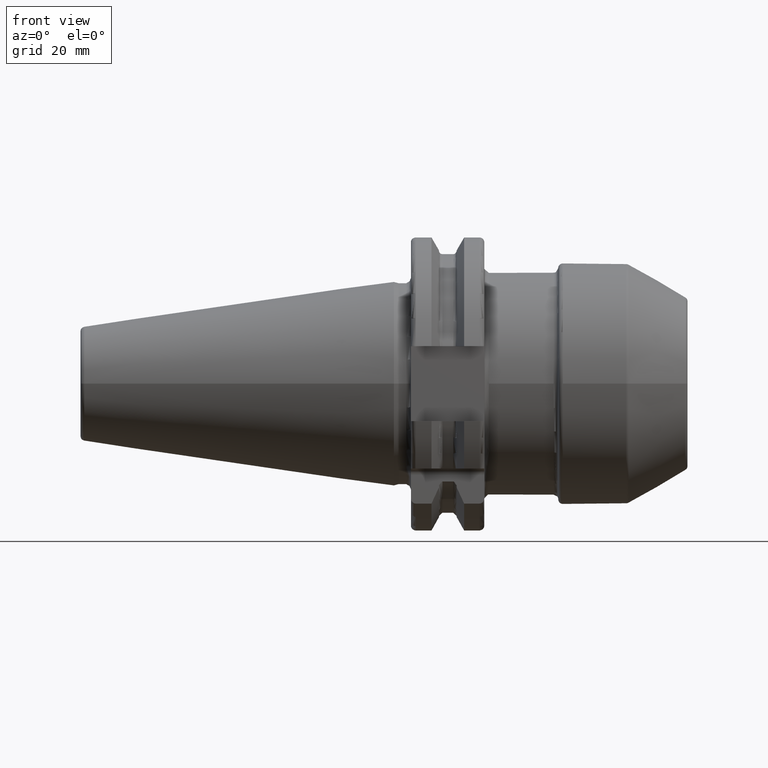
[diagram: clean part render]
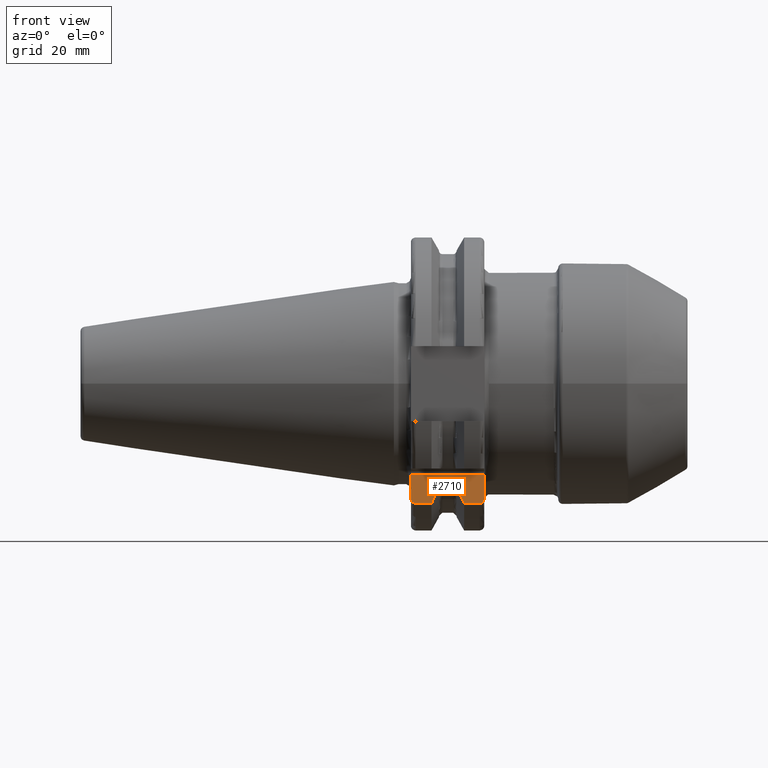
[diagram: same view with one face highlighted and labeled with its STEP entity id]
A machine part, front view. The second image highlights one B-rep face of the part: STEP entity #2710.
In plain terms, the highlighted planar face has unit normal (0, 1, 0).
Its self-contained STEP definition (entity closure, byte-faithful):
#434=DIRECTION('',(0.E0,0.E0,1.E0));
#435=VECTOR('',#434,4.990259339464E0);
#436=CARTESIAN_POINT('',(1.905E1,-1.835E1,-2.469025933946E1));
#437=LINE('',#436,#435);
#516=DIRECTION('',(0.E0,0.E0,1.E0));
#517=VECTOR('',#516,2.754068371193E-1);
#518=CARTESIAN_POINT('',(9.2625E0,-1.835E1,-2.240773613162E1));
#519=LINE('',#518,#517);
#622=DIRECTION('',(0.E0,0.E0,1.E0));
#623=VECTOR('',#622,2.754068371193E-1);
#624=CARTESIAN_POINT('',(1.30875E1,-1.835E1,-2.240773613162E1));
#625=LINE('',#624,#623);
#738=DIRECTION('',(0.E0,0.E0,1.E0));
#739=VECTOR('',#738,4.990259339464E0);
#740=CARTESIAN_POINT('',(3.2E0,-1.835E1,-2.469025933946E1));
#741=LINE('',#740,#739);
#799=DIRECTION('',(-1.E0,0.E0,0.E0));
#800=VECTOR('',#799,1.585E1);
#801=CARTESIAN_POINT('',(1.905E1,-1.835E1,-1.97E1));
#802=LINE('',#801,#800);
#814=CARTESIAN_POINT('',(1.905E1,-1.835E1,-2.469025933946E1));
#815=CARTESIAN_POINT('',(1.905E1,-1.835E1,-2.477827489148E1));
#816=CARTESIAN_POINT('',(1.903550352933E1,-1.835E1,-2.495194722121E1));
#817=CARTESIAN_POINT('',(1.896629632127E1,-1.835E1,-2.521302960336E1));
#818=CARTESIAN_POINT('',(1.884964259244E1,-1.835E1,-2.545175760021E1));
#819=CARTESIAN_POINT('',(1.869337393206E1,-1.835E1,-2.565125079223E1));
#820=CARTESIAN_POINT('',(1.850440420446E1,-1.835E1,-2.580344847600E1));
#821=CARTESIAN_POINT('',(1.828893233655E1,-1.835E1,-2.590127687802E1));
#822=CARTESIAN_POINT('',(1.813210111876E1,-1.835E1,-2.592554543785E1));
#823=CARTESIAN_POINT('',(1.805E1,-1.835E1,-2.592554543785E1));
#861=DIRECTION('',(1.E0,0.E0,0.E0));
#862=VECTOR('',#861,3.445946479578E0);
#863=CARTESIAN_POINT('',(4.2E0,-1.835E1,-2.592554543785E1));
#864=LINE('',#863,#862);
#879=DIRECTION('',(1.E0,0.E0,0.E0));
#880=VECTOR('',#879,3.345946479578E0);
#881=CARTESIAN_POINT('',(1.470405352042E1,-1.835E1,-2.592554543785E1));
#882=LINE('',#881,#880);
#930=CARTESIAN_POINT('',(4.2E0,-1.835E1,-2.592554543785E1));
#931=CARTESIAN_POINT('',(4.117978515713E0,-1.835E1,-2.592554543785E1));
#932=CARTESIAN_POINT('',(3.961246891048E0,-1.835E1,-2.590134188482E1));
#933=CARTESIAN_POINT('',(3.745539786217E0,-1.835E1,-2.580342617652E1));
#934=CARTESIAN_POINT('',(3.556578831610E0,-1.835E1,-2.565121806264E1));
#935=CARTESIAN_POINT('',(3.400124325915E0,-1.835E1,-2.545142383546E1));
#936=CARTESIAN_POINT('',(3.283526257188E0,-1.835E1,-2.521253976185E1));
#937=CARTESIAN_POINT('',(3.214446436835E0,-1.835E1,-2.495157117356E1));
#938=CARTESIAN_POINT('',(3.2E0,-1.835E1,-2.477812311755E1));
#939=CARTESIAN_POINT('',(3.2E0,-1.835E1,-2.469025933946E1));
#980=CARTESIAN_POINT('',(9.2625E0,-1.835E1,-2.240773613162E1));
#981=CARTESIAN_POINT('',(9.097869015375E0,-1.835E1,-2.277629848758E1));
#982=CARTESIAN_POINT('',(8.758691179732E0,-1.835E1,-2.352831190146E1));
#983=CARTESIAN_POINT('',(8.220420735022E0,-1.835E1,-2.469989032362E1));
#984=CARTESIAN_POINT('',(7.840855578955E0,-1.835E1,-2.551194640168E1));
#985=CARTESIAN_POINT('',(7.645946479578E0,-1.835E1,-2.592554543785E1));
#1013=CARTESIAN_POINT('',(1.30875E1,-1.835E1,-2.240773613162E1));
#1014=CARTESIAN_POINT('',(1.325213098463E1,-1.835E1,-2.277629848758E1));
#1015=CARTESIAN_POINT('',(1.359130882027E1,-1.835E1,-2.352831190146E1));
#1016=CARTESIAN_POINT('',(1.412957926498E1,-1.835E1,-2.469989032362E1));
#1017=CARTESIAN_POINT('',(1.450914442104E1,-1.835E1,-2.551194640168E1));
#1018=CARTESIAN_POINT('',(1.470405352042E1,-1.835E1,-2.592554543785E1));
#1055=CARTESIAN_POINT('',(1.30875E1,-1.835E1,-2.213232929450E1));
#1056=CARTESIAN_POINT('',(1.30875E1,-1.835E1,-2.206221408282E1));
#1057=CARTESIAN_POINT('',(1.307623234956E1,-1.835E1,-2.192389012956E1));
#1058=CARTESIAN_POINT('',(1.302304002386E1,-1.835E1,-2.171577032079E1));
#1059=CARTESIAN_POINT('',(1.293464596960E1,-1.835E1,-2.152606845134E1));
#1060=CARTESIAN_POINT('',(1.281674247215E1,-1.835E1,-2.136698869001E1));
#1061=CARTESIAN_POINT('',(1.267543530336E1,-1.835E1,-2.124593918272E1));
#1062=CARTESIAN_POINT('',(1.251391277471E1,-1.835E1,-2.116784088975E1));
#1063=CARTESIAN_POINT('',(1.239797666454E1,-1.835E1,-2.114893614346E1));
#1064=CARTESIAN_POINT('',(1.23375E1,-1.835E1,-2.114893614346E1));
#1102=DIRECTION('',(1.E0,0.E0,0.E0));
#1103=VECTOR('',#1102,2.325E0);
#1104=CARTESIAN_POINT('',(1.00125E1,-1.835E1,-2.114893614346E1));
#1105=LINE('',#1104,#1103);
#1135=CARTESIAN_POINT('',(1.00125E1,-1.835E1,-2.114893614346E1));
#1136=CARTESIAN_POINT('',(9.951993698949E0,-1.835E1,-2.114893614346E1));
#1137=CARTESIAN_POINT('',(9.836000286499E0,-1.835E1,-2.116785770514E1));
#1138=CARTESIAN_POINT('',(9.674360365633E0,-1.835E1,-2.124605529531E1));
#1139=CARTESIAN_POINT('',(9.533017193128E0,-1.835E1,-2.136726141392E1));
#1140=CARTESIAN_POINT('',(9.415344880527E0,-1.835E1,-2.152613059545E1));
#1141=CARTESIAN_POINT('',(9.327039810665E0,-1.835E1,-2.171558232438E1));
#1142=CARTESIAN_POINT('',(9.273817984253E0,-1.835E1,-2.192356855291E1));
#1143=CARTESIAN_POINT('',(9.2625E0,-1.835E1,-2.206207271485E1));
#1144=CARTESIAN_POINT('',(9.2625E0,-1.835E1,-2.213232929450E1));
#1563=CARTESIAN_POINT('',(9.2625E0,-1.835E1,-2.240773613162E1));
#1564=CARTESIAN_POINT('',(9.2625E0,-1.835E1,-2.213232929450E1));
#1565=VERTEX_POINT('',#1563);
#1566=VERTEX_POINT('',#1564);
#1591=CARTESIAN_POINT('',(1.30875E1,-1.835E1,-2.240773613162E1));
#1592=CARTESIAN_POINT('',(1.30875E1,-1.835E1,-2.213232929450E1));
#1593=VERTEX_POINT('',#1591);
#1594=VERTEX_POINT('',#1592);
#1656=CARTESIAN_POINT('',(1.00125E1,-1.835E1,-2.114893614346E1));
#1657=VERTEX_POINT('',#1656);
#1658=CARTESIAN_POINT('',(1.23375E1,-1.835E1,-2.114893614346E1));
#1659=VERTEX_POINT('',#1658);
#1664=CARTESIAN_POINT('',(1.905E1,-1.835E1,-2.469025933946E1));
#1665=VERTEX_POINT('',#1664);
#1666=CARTESIAN_POINT('',(1.805E1,-1.835E1,-2.592554543785E1));
#1667=VERTEX_POINT('',#1666);
#1668=CARTESIAN_POINT('',(4.2E0,-1.835E1,-2.592554543785E1));
#1669=VERTEX_POINT('',#1668);
#1670=CARTESIAN_POINT('',(3.2E0,-1.835E1,-2.469025933946E1));
#1671=VERTEX_POINT('',#1670);
#1676=CARTESIAN_POINT('',(1.905E1,-1.835E1,-1.97E1));
#1677=VERTEX_POINT('',#1676);
#1682=CARTESIAN_POINT('',(3.2E0,-1.835E1,-1.97E1));
#1683=VERTEX_POINT('',#1682);
#1711=VERTEX_POINT('',#1018);
#1712=VERTEX_POINT('',#985);
#2680=CARTESIAN_POINT('',(1.905E1,-1.835E1,-2.835E1));
#2681=DIRECTION('',(0.E0,1.E0,0.E0));
#2682=DIRECTION('',(0.E0,0.E0,1.E0));
#2683=AXIS2_PLACEMENT_3D('',#2680,#2681,#2682);
#2684=PLANE('',#2683);
#2685=ORIENTED_EDGE('',*,*,#2284,.F.);
#2687=ORIENTED_EDGE('',*,*,#2686,.T.);
#2689=ORIENTED_EDGE('',*,*,#2688,.F.);
#2691=ORIENTED_EDGE('',*,*,#2690,.F.);
#2692=ORIENTED_EDGE('',*,*,#2490,.T.);
#2694=ORIENTED_EDGE('',*,*,#2693,.T.);
#2696=ORIENTED_EDGE('',*,*,#2695,.F.);
#2698=ORIENTED_EDGE('',*,*,#2697,.T.);
#2699=ORIENTED_EDGE('',*,*,#2404,.F.);
#2701=ORIENTED_EDGE('',*,*,#2700,.T.);
#2703=ORIENTED_EDGE('',*,*,#2702,.F.);
#2705=ORIENTED_EDGE('',*,*,#2704,.T.);
#2706=ORIENTED_EDGE('',*,*,#2614,.T.);
#2707=ORIENTED_EDGE('',*,*,#2673,.F.);
#2708=EDGE_LOOP('',(#2685,#2687,#2689,#2691,#2692,#2694,#2696,#2698,#2699,#2701,
#2703,#2705,#2706,#2707));
#2709=FACE_OUTER_BOUND('',#2708,.F.);
#2710=ADVANCED_FACE('',(#2709),#2684,.F.);
#824=B_SPLINE_CURVE_WITH_KNOTS('',3,(#814,#815,#816,#817,#818,#819,#820,#821,
#822,#823),.UNSPECIFIED.,.F.,.F.,(4,1,1,1,1,1,1,4),(0.E0,1.428571428571E-1,
2.857142857143E-1,4.285714285714E-1,5.714285714286E-1,7.142857142857E-1,
8.571428571429E-1,1.E0),.UNSPECIFIED.);
#940=B_SPLINE_CURVE_WITH_KNOTS('',3,(#930,#931,#932,#933,#934,#935,#936,#937,
#938,#939),.UNSPECIFIED.,.F.,.F.,(4,1,1,1,1,1,1,4),(0.E0,1.428571428571E-1,
2.857142857143E-1,4.285714285714E-1,5.714285714286E-1,7.142857142857E-1,
8.571428571429E-1,1.E0),.UNSPECIFIED.);
#986=B_SPLINE_CURVE_WITH_KNOTS('',3,(#980,#981,#982,#983,#984,#985),
.UNSPECIFIED.,.F.,.F.,(4,1,1,4),(0.E0,3.333333333333E-1,6.666666666667E-1,1.E0),
.UNSPECIFIED.);
#1019=B_SPLINE_CURVE_WITH_KNOTS('',3,(#1013,#1014,#1015,#1016,#1017,#1018),
.UNSPECIFIED.,.F.,.F.,(4,1,1,4),(0.E0,3.333333333333E-1,6.666666666667E-1,1.E0),
.UNSPECIFIED.);
#1065=B_SPLINE_CURVE_WITH_KNOTS('',3,(#1055,#1056,#1057,#1058,#1059,#1060,#1061,
#1062,#1063,#1064),.UNSPECIFIED.,.F.,.F.,(4,1,1,1,1,1,1,4),(0.E0,
1.428571428571E-1,2.857142857143E-1,4.285714285714E-1,5.714285714286E-1,
7.142857142857E-1,8.571428571429E-1,1.E0),.UNSPECIFIED.);
#1145=B_SPLINE_CURVE_WITH_KNOTS('',3,(#1135,#1136,#1137,#1138,#1139,#1140,#1141,
#1142,#1143,#1144),.UNSPECIFIED.,.F.,.F.,(4,1,1,1,1,1,1,4),(0.E0,
1.428571428571E-1,2.857142857143E-1,4.285714285714E-1,5.714285714286E-1,
7.142857142857E-1,8.571428571429E-1,1.E0),.UNSPECIFIED.);
#2284=EDGE_CURVE('',#1665,#1677,#437,.T.);
#2404=EDGE_CURVE('',#1565,#1566,#519,.T.);
#2490=EDGE_CURVE('',#1593,#1594,#625,.T.);
#2614=EDGE_CURVE('',#1671,#1683,#741,.T.);
#2673=EDGE_CURVE('',#1677,#1683,#802,.T.);
#2686=EDGE_CURVE('',#1665,#1667,#824,.T.);
#2688=EDGE_CURVE('',#1711,#1667,#882,.T.);
#2690=EDGE_CURVE('',#1593,#1711,#1019,.T.);
#2693=EDGE_CURVE('',#1594,#1659,#1065,.T.);
#2695=EDGE_CURVE('',#1657,#1659,#1105,.T.);
#2697=EDGE_CURVE('',#1657,#1566,#1145,.T.);
#2700=EDGE_CURVE('',#1565,#1712,#986,.T.);
#2702=EDGE_CURVE('',#1669,#1712,#864,.T.);
#2704=EDGE_CURVE('',#1669,#1671,#940,.T.);